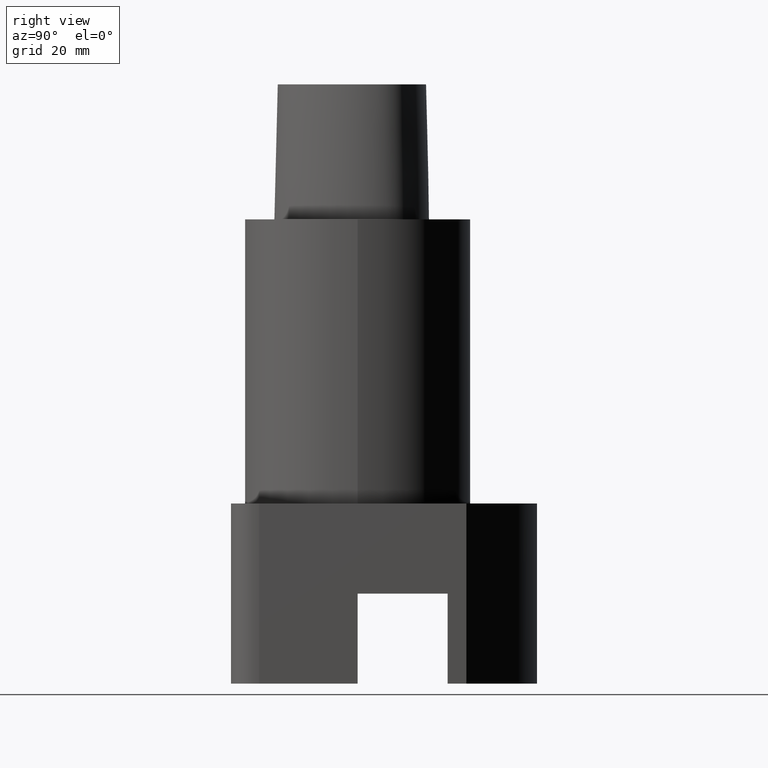
[diagram: clean part render]
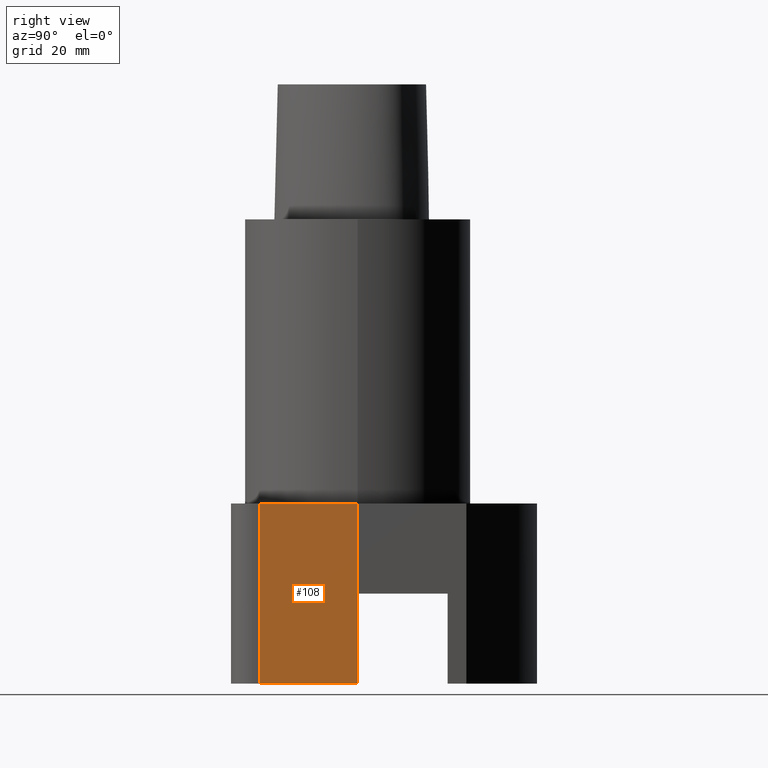
[diagram: same view with one face highlighted and labeled with its STEP entity id]
A machine part, right view. The second image highlights one B-rep face of the part: STEP entity #108.
In plain terms, the highlighted planar face has unit normal (1, -0, -0).
Its self-contained STEP definition (entity closure, byte-faithful):
#84=EDGE_CURVE('240[2]',#234,#235,#236,.T.);
#95=EDGE_CURVE('240[2]',#235,#251,#252,.T.);
#108=ADVANCED_FACE('240[2]',(#269),#270,.T.);
#148=EDGE_CURVE('240[2]',#324,#251,#325,.T.);
#208=EDGE_CURVE('240[2]',#234,#324,#400,.T.);
#234=VERTEX_POINT('',#420);
#235=VERTEX_POINT('',#421);
#236=LINE('',#422,#423);
#251=VERTEX_POINT('',#493);
#252=LINE('',#494,#495);
#269=FACE_OUTER_BOUND('',#518,.T.);
#270=PLANE('',#519);
#324=VERTEX_POINT('',#602);
#325=LINE('',#603,#604);
#400=LINE('',#1192,#1193);
#420=CARTESIAN_POINT('',(51.0,-0.100000000000042,-165.0));
#421=CARTESIAN_POINT('',(51.0,-35.0,-165.0));
#422=CARTESIAN_POINT('',(51.0,-0.100000000000042,-165.0));
#423=VECTOR('',#1199,1.0);
#493=CARTESIAN_POINT('',(51.0,-35.0,-101.0));
#494=CARTESIAN_POINT('',(51.0,-35.0,-165.0));
#495=VECTOR('',#1210,1.0);
#518=EDGE_LOOP('',(#1235,#1236,#1237,#1238));
#519=AXIS2_PLACEMENT_3D('',#1239,#1240,#1241);
#602=CARTESIAN_POINT('',(51.0,-0.100000000000038,-101.0));
#603=CARTESIAN_POINT('',(51.0,-0.100000000000038,-101.0));
#604=VECTOR('',#1285,1.0);
#1192=CARTESIAN_POINT('',(51.0,-0.100000000000042,-165.0));
#1193=VECTOR('',#1387,1.0);
#1199=DIRECTION('',(-1.83697019872103E-016,-1.0,6.12323399573677E-017));
#1210=DIRECTION('',(-1.22464679914735E-016,6.12323399573677E-017,1.0));
#1235=ORIENTED_EDGE('',*,*,#148,.T.);
#1236=ORIENTED_EDGE('',*,*,#95,.F.);
#1237=ORIENTED_EDGE('',*,*,#84,.F.);
#1238=ORIENTED_EDGE('',*,*,#208,.T.);
#1239=CARTESIAN_POINT('',(51.0,-17.55,-165.0));
#1240=DIRECTION('',(1.0,-1.83697019872103E-016,-2.24963967399278E-032));
#1241=DIRECTION('',(0.0,-1.22464679914735E-016,1.0));
#1285=DIRECTION('',(-1.83697019872103E-016,-1.0,6.12323399573677E-017));
#1387=DIRECTION('',(-1.22464679914735E-016,6.12323399573677E-017,1.0));